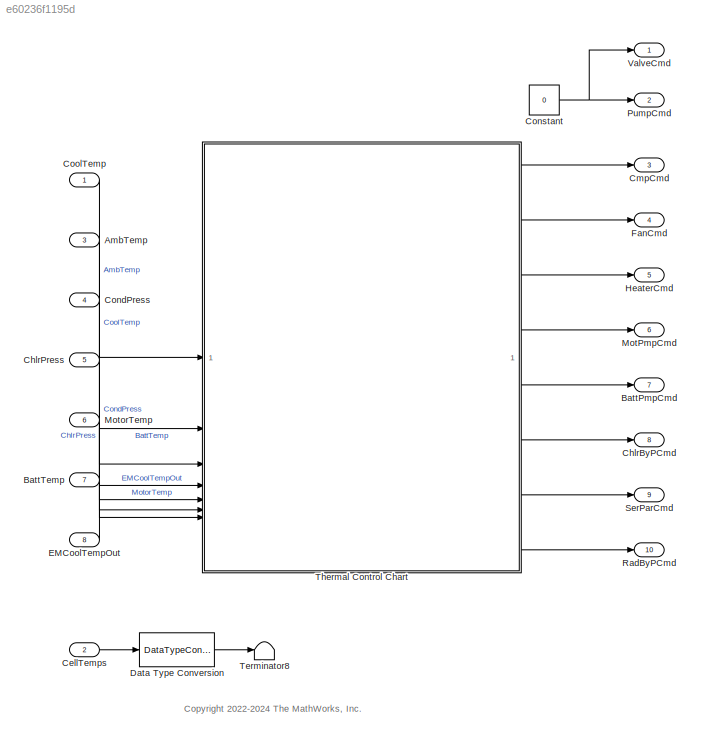
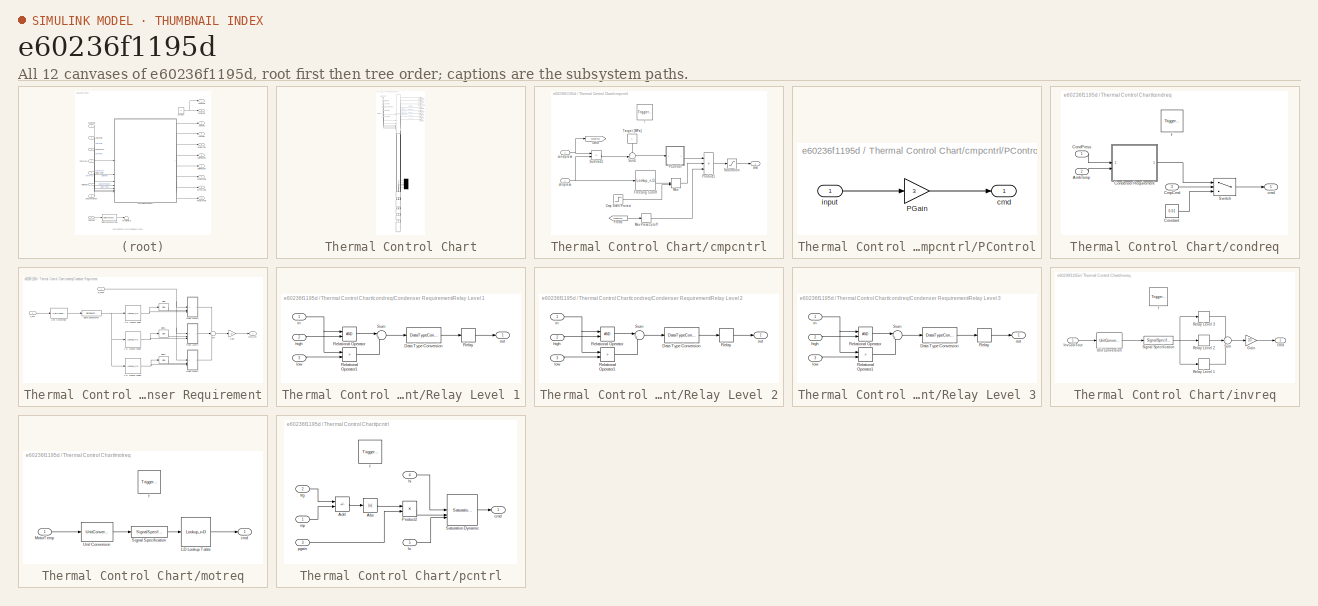
[diagram: thumbnail index - all 12 canvases of the model, root first then tree order]
MODEL slx_e60236f1195d
KIND model
CONFIG AbsTol = auto
CONFIG EnableMultiTasking = off
CONFIG FixedStep = 0.1
CONFIG MaxStep = auto
CONFIG MinStep = auto
CONFIG RelTol = 1e-3
CONFIG SampleTimeConstraint = Unconstrained
CONFIG SolverName = FixedStepDiscrete
CONFIG StartTime = 0.0
CONFIG StopTime = 10000
BLOCK [Inport] AmbTemp
  Port = 3
  Unit = K
BLOCK [Outport] BattPmpCmd
  Port = 7
BLOCK [Inport] BattTemp
  Port = 7
  Unit = K
BLOCK [Inport] CellTemps
  Port = 2
  PortDimensions = PlntBattNumCellSer
BLOCK [Outport] ChlrByPCmd
  Port = 8
BLOCK [Inport] ChlrPress
  Port = 5
  Unit = MPa
BLOCK [Outport] CmpCmd
  Port = 3
BLOCK [Inport] CondPress
  Port = 4
  Unit = MPa
BLOCK [Constant] Constant
  SampleTime = 0.1
  Value = 0
BLOCK [Inport] CoolTemp
  Unit = K
BLOCK [DataTypeConversion] Data Type Conversion
  OutDataTypeStr = single
  RndMeth = Floor
  SaturateOnIntegerOverflow = off
BLOCK [Inport] EMCoolTempOut
  Port = 8
  Unit = K
BLOCK [Outport] FanCmd
  Port = 4
BLOCK [Outport] HeaterCmd
  Port = 5
BLOCK [Outport] MotPmpCmd
  Port = 6
BLOCK [Inport] MotorTemp
  Port = 6
  Unit = K
BLOCK [Outport] PumpCmd
  Port = 2
BLOCK [Outport] RadByPCmd
  Port = 10
BLOCK [Outport] SerParCmd
  Port = 9
BLOCK [Terminator] Terminator8
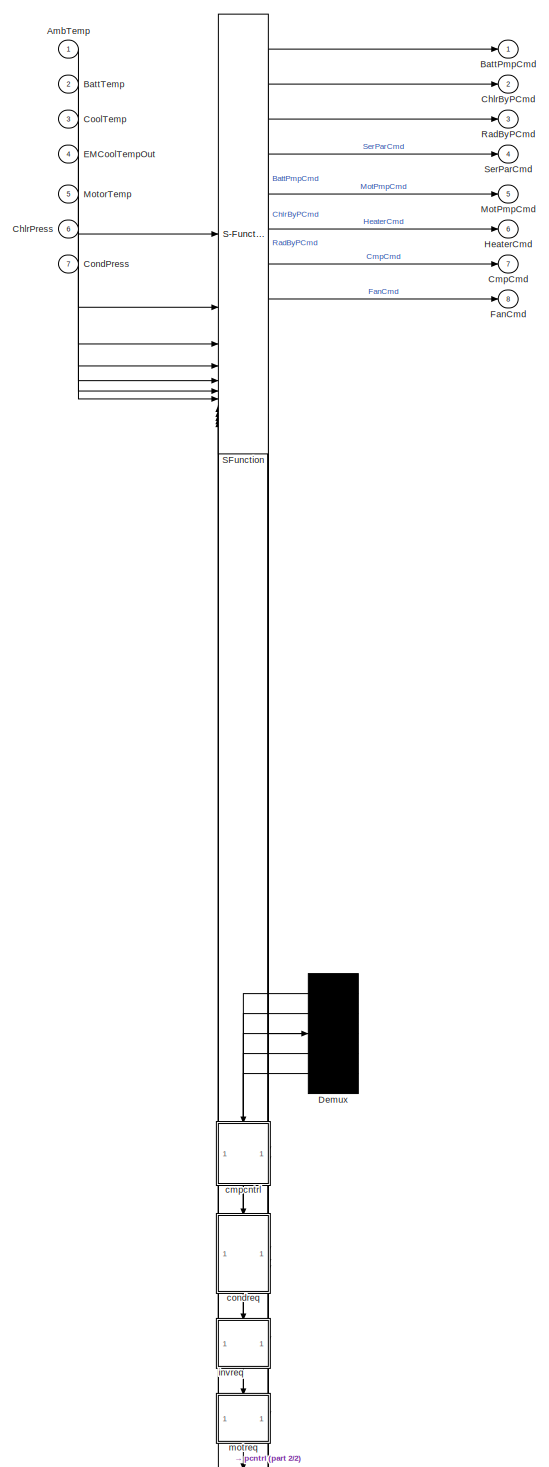
[diagram: Thermal Control Chart - part 1/2, most of the canvas]
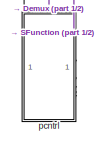
[diagram: Thermal Control Chart - part 2/2, bottom center region]
BLOCK [SubSystem] Thermal Control Chart
  ErrorFcn = Stateflow.Translate.translate
  PermitHierarchicalResolution = ExplicitOnly
  PortSchema = {"entries":[{"content":{"sides":[{"content":{"connectorIds":["In3","In1","In7","In6","In5","In2","In4"]},"type":"ConnectorPlacement.EquallySpacedRectSide","uuid":"4fe00f39-37c1-46c0-a616-5b099423e3d7"},{"content":{"connectorIds":["Out7","Out8","Out6","Out5","Out1","Out2","Out4","Out3"],"side":"RIGHT"},"type":"ConnectorPlacement.EquallySpacedRectSide","uuid":"6ae0ae8a-110b-42ac-9a90-d19ce2f3e627"},...<+307ch>
  SFBlockType = Chart
  TreatAsAtomicUnit = on
BLOCK [Demux] Thermal Control Chart/ Demux 
  Outputs = 5
BLOCK [S-Function] Thermal Control Chart/ SFunction 
  EnableBusSupport = off
  FunctionName = sf_sfun
  Parameters = CtrlThrBattTrgTemp,CtrlThrEMTrgTemp
  PortCounts = [12 21]
  SFcnIsStateOwnerBlock = off
  SFunctionDeploymentMode = off
  Tag = Stateflow S-Function 3
BLOCK [Inport] Thermal Control Chart/AmbTemp
BLOCK [Outport] Thermal Control Chart/BattPmpCmd
BLOCK [Inport] Thermal Control Chart/BattTemp
  Port = 2
BLOCK [Outport] Thermal Control Chart/ChlrByPCmd
  Port = 2
BLOCK [Inport] Thermal Control Chart/ChlrPress
  Port = 6
BLOCK [Outport] Thermal Control Chart/CmpCmd
  Port = 7
BLOCK [Inport] Thermal Control Chart/CondPress
  Port = 7
BLOCK [Inport] Thermal Control Chart/CoolTemp
  Port = 3
BLOCK [Inport] Thermal Control Chart/EMCoolTempOut
  Port = 4
BLOCK [Outport] Thermal Control Chart/FanCmd
  Port = 8
BLOCK [Outport] Thermal Control Chart/HeaterCmd
  Port = 6
BLOCK [Outport] Thermal Control Chart/MotPmpCmd
  Port = 5
BLOCK [Inport] Thermal Control Chart/MotorTemp
  Port = 5
BLOCK [Outport] Thermal Control Chart/RadByPCmd
  Port = 3
BLOCK [Outport] Thermal Control Chart/SerParCmd
  Port = 4
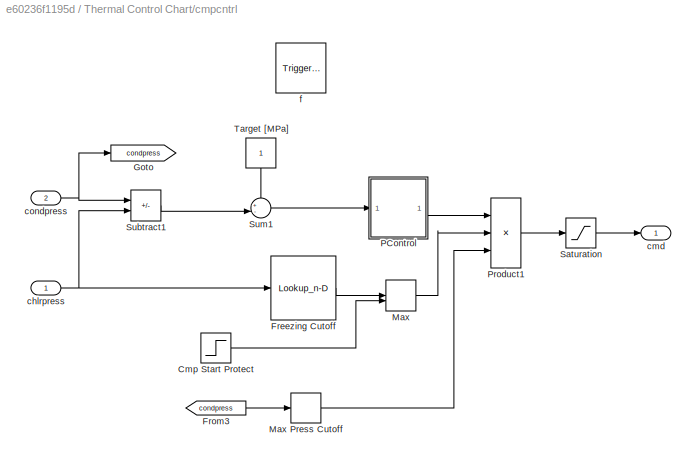
BLOCK [SubSystem] Thermal Control Chart/cmpcntrl
  PreDeleteFcn = Stateflow.SLINSF.SimulinkMan.removePreDeleteFcn
  UndoDeleteFcn = Stateflow.SLINSF.SimulinkMan.restorePreDeleteFcn
BLOCK [Step] Thermal Control Chart/cmpcntrl/Cmp Start Protect
  After = 0
  Before = 1
  Time = 15
BLOCK [Lookup_n-D] Thermal Control Chart/cmpcntrl/Freezing Cutoff
  BeginIndexSearchUsingPreviousIndexResult = on
  BreakpointsForDimension1 = [0.3 0.31]
  ExtrapMethod = Clip
  IndexSearchMethod = Linear search
  InputPortMap = u0
  InternalRulePriority = Speed
  NumberOfTableDimensions = 1
  RndMeth = Simplest
  Table = [0.1 1]
BLOCK [From] Thermal Control Chart/cmpcntrl/From3
  GotoTag = condpress
BLOCK [Goto] Thermal Control Chart/cmpcntrl/Goto
  GotoTag = condpress
BLOCK [MinMax] Thermal Control Chart/cmpcntrl/Max
  Function = max
  Inputs = 2
BLOCK [Relay] Thermal Control Chart/cmpcntrl/Max Press Cutoff
  OffOutputValue = 1
  OffSwitchValue = 2.9
  OnOutputValue = 0.1
  OnSwitchValue = 3
BLOCK [SubSystem] Thermal Control Chart/cmpcntrl/PControl
BLOCK [Gain] Thermal Control Chart/cmpcntrl/PControl/PGain
  Gain = 3
BLOCK [Outport] Thermal Control Chart/cmpcntrl/PControl/cmd
BLOCK [Inport] Thermal Control Chart/cmpcntrl/PControl/input
BLOCK [Product] Thermal Control Chart/cmpcntrl/Product1
  Inputs = 3
BLOCK [Saturate] Thermal Control Chart/cmpcntrl/Saturation
  LowerLimit = 0.1
  UpperLimit = 1
BLOCK [Sum] Thermal Control Chart/cmpcntrl/Subtract1
  IconShape = rectangular
  Inputs = +-
BLOCK [Sum] Thermal Control Chart/cmpcntrl/Sum1
  Inputs = +-|
BLOCK [Constant] Thermal Control Chart/cmpcntrl/Target [MPa]
  NameLocation = right
BLOCK [Inport] Thermal Control Chart/cmpcntrl/chlrpress
  OutDataTypeStr = double
  PortDimensions = 1
  SignalType = real
  VarSizeSig = No
BLOCK [Outport] Thermal Control Chart/cmpcntrl/cmd
BLOCK [Inport] Thermal Control Chart/cmpcntrl/condpress
  OutDataTypeStr = double
  Port = 2
  PortDimensions = 1
  SignalType = real
  VarSizeSig = No
BLOCK [TriggerPort] Thermal Control Chart/cmpcntrl/f
  CopyFcn = Stateflow.SLINSF.SimulinkMan.removeBlockPreDeleteFcn
  PreDeleteFcn = Stateflow.SLINSF.SimulinkMan.unsafePredeleteFcn
  SampleTime = -1
  StatesWhenEnabling = held
  TriggerType = function-call
  VariantControl = (inherit)
BLOCK [SubSystem] Thermal Control Chart/condreq
  PreDeleteFcn = Stateflow.SLINSF.SimulinkMan.removePreDeleteFcn
  UndoDeleteFcn = Stateflow.SLINSF.SimulinkMan.restorePreDeleteFcn
BLOCK [Inport] Thermal Control Chart/condreq/AmbTemp
  OutDataTypeStr = double
  Port = 2
  PortDimensions = 1
  SignalType = real
  VarSizeSig = No
BLOCK [Inport] Thermal Control Chart/condreq/CmpCmd
  OutDataTypeStr = double
  Port = 3
  PortDimensions = 1
  SignalType = real
  VarSizeSig = No
BLOCK [Inport] Thermal Control Chart/condreq/CondPress
  OutDataTypeStr = double
  PortDimensions = 1
  SignalType = real
  VarSizeSig = No
BLOCK [SubSystem] Thermal Control Chart/condreq/Condenser Requirement
BLOCK [Lookup_n-D] Thermal Control Chart/condreq/Condenser Requirement/1-D Lookup Table
  BeginIndexSearchUsingPreviousIndexResult = on
  BreakpointsForDimension1 = [0 20 30 40 50]
  IndexSearchMethod = Linear search
  InputPortMap = u0
  InternalRulePriority = Speed
  NumberOfTableDimensions = 1
  RndMeth = Simplest
  Table = [2.0 2.0 1.8 1.5 1.3]
BLOCK [Lookup_n-D] Thermal Control Chart/condreq/Condenser Requirement/1-D Lookup Table1
  BeginIndexSearchUsingPreviousIndexResult = on
  BreakpointsForDimension1 = [0 20 30 40 50]
  IndexSearchMethod = Linear search
  InputPortMap = u0
  InternalRulePriority = Speed
  NumberOfTableDimensions = 1
  RndMeth = Simplest
  Table = [1.4 1.4 1.3 1.2 1.1]
BLOCK [Lookup_n-D] Thermal Control Chart/condreq/Condenser Requirement/1-D Lookup Table2
  BeginIndexSearchUsingPreviousIndexResult = on
  BreakpointsForDimension1 = [0 20 30 40 50]
  IndexSearchMethod = Linear search
  InputPortMap = u0
  InternalRulePriority = Speed
  NumberOfTableDimensions = 1
  RndMeth = Simplest
  Table = [0.8 0.8 0.8 0.8 0.8]
BLOCK [Bias] Thermal Control Chart/condreq/Condenser Requirement/Bias
  Bias = 0.4
  SaturateOnIntegerOverflow = off
BLOCK [Bias] Thermal Control Chart/condreq/Condenser Requirement/Bias1
  Bias = 0.4
  SaturateOnIntegerOverflow = off
BLOCK [Bias] Thermal Control Chart/condreq/Condenser Requirement/Bias2
  Bias = 0.3
  SaturateOnIntegerOverflow = off
BLOCK [Gain] Thermal Control Chart/condreq/Condenser Requirement/Gain
  Gain = 1/3
BLOCK [SubSystem] Thermal Control Chart/condreq/Condenser Requirement/Relay Level 1
BLOCK [DataTypeConversion] Thermal Control Chart/condreq/Condenser Requirement/Relay Level 1/Data Type Conversion
  RndMeth = Floor
  SaturateOnIntegerOverflow = off
BLOCK [RelationalOperator] Thermal Control Chart/condreq/Condenser Requirement/Relay Level 1/Relational Operator
  InputSameDT = off
  OutDataTypeStr = boolean
  RndMeth = Simplest
BLOCK [RelationalOperator] Thermal Control Chart/condreq/Condenser Requirement/Relay Level 1/Relational Operator1
  InputSameDT = off
  Operator = >
  OutDataTypeStr = boolean
  RndMeth = Simplest
BLOCK [Relay] Thermal Control Chart/condreq/Condenser Requirement/Relay Level 1/Relay
  OffSwitchValue = 0.5
  OnSwitchValue = 1.5
BLOCK [Sum] Thermal Control Chart/condreq/Condenser Requirement/Relay Level 1/Sum
  Inputs = |++
BLOCK [Inport] Thermal Control Chart/condreq/Condenser Requirement/Relay Level 1/high
  Port = 2
BLOCK [Inport] Thermal Control Chart/condreq/Condenser Requirement/Relay Level 1/in
BLOCK [Inport] Thermal Control Chart/condreq/Condenser Requirement/Relay Level 1/low
  Port = 3
BLOCK [Outport] Thermal Control Chart/condreq/Condenser Requirement/Relay Level 1/out
BLOCK [SubSystem] Thermal Control Chart/condreq/Condenser Requirement/Relay Level 2
BLOCK [DataTypeConversion] Thermal Control Chart/condreq/Condenser Requirement/Relay Level 2/Data Type Conversion
  RndMeth = Floor
  SaturateOnIntegerOverflow = off
BLOCK [RelationalOperator] Thermal Control Chart/condreq/Condenser Requirement/Relay Level 2/Relational Operator
  InputSameDT = off
  OutDataTypeStr = boolean
  RndMeth = Simplest
BLOCK [RelationalOperator] Thermal Control Chart/condreq/Condenser Requirement/Relay Level 2/Relational Operator1
  InputSameDT = off
  Operator = >
  OutDataTypeStr = boolean
  RndMeth = Simplest
BLOCK [Relay] Thermal Control Chart/condreq/Condenser Requirement/Relay Level 2/Relay
  OffSwitchValue = 0.5
  OnSwitchValue = 1.5
BLOCK [Sum] Thermal Control Chart/condreq/Condenser Requirement/Relay Level 2/Sum
  Inputs = |++
BLOCK [Inport] Thermal Control Chart/condreq/Condenser Requirement/Relay Level 2/high
  Port = 2
BLOCK [Inport] Thermal Control Chart/condreq/Condenser Requirement/Relay Level 2/in
BLOCK [Inport] Thermal Control Chart/condreq/Condenser Requirement/Relay Level 2/low
  Port = 3
BLOCK [Outport] Thermal Control Chart/condreq/Condenser Requirement/Relay Level 2/out
BLOCK [SubSystem] Thermal Control Chart/condreq/Condenser Requirement/Relay Level 3
BLOCK [DataTypeConversion] Thermal Control Chart/condreq/Condenser Requirement/Relay Level 3/Data Type Conversion
  RndMeth = Floor
  SaturateOnIntegerOverflow = off
BLOCK [RelationalOperator] Thermal Control Chart/condreq/Condenser Requirement/Relay Level 3/Relational Operator
  InputSameDT = off
  OutDataTypeStr = boolean
  RndMeth = Simplest
BLOCK [RelationalOperator] Thermal Control Chart/condreq/Condenser Requirement/Relay Level 3/Relational Operator1
  InputSameDT = off
  Operator = >
  OutDataTypeStr = boolean
  RndMeth = Simplest
BLOCK [Relay] Thermal Control Chart/condreq/Condenser Requirement/Relay Level 3/Relay
  OffSwitchValue = 0.5
  OnSwitchValue = 1.5
BLOCK [Sum] Thermal Control Chart/condreq/Condenser Requirement/Relay Level 3/Sum
  Inputs = |++
BLOCK [Inport] Thermal Control Chart/condreq/Condenser Requirement/Relay Level 3/high
  Port = 2
BLOCK [Inport] Thermal Control Chart/condreq/Condenser Requirement/Relay Level 3/in
BLOCK [Inport] Thermal Control Chart/condreq/Condenser Requirement/Relay Level 3/low
  Port = 3
BLOCK [Outport] Thermal Control Chart/condreq/Condenser Requirement/Relay Level 3/out
BLOCK [SignalSpecification] Thermal Control Chart/condreq/Condenser Requirement/Signal Specification
  Unit = °C
BLOCK [Sum] Thermal Control Chart/condreq/Condenser Requirement/Sum
  Inputs = +++
BLOCK [Inport] Thermal Control Chart/condreq/Condenser Requirement/T_env
  Port = 2
  Unit = K
BLOCK [UnitConversion] Thermal Control Chart/condreq/Condenser Requirement/Unit Conversion
BLOCK [Outport] Thermal Control Chart/condreq/Condenser Requirement/cmd_fan
BLOCK [Inport] Thermal Control Chart/condreq/Condenser Requirement/p_cond
BLOCK [Constant] Thermal Control Chart/condreq/Constant
  SampleTime = -1
  Value = 0.01
BLOCK [Switch] Thermal Control Chart/condreq/Switch
  Criteria = u2 > Threshold
  InputSameDT = off
  SaturateOnIntegerOverflow = off
BLOCK [Outport] Thermal Control Chart/condreq/cmd
BLOCK [TriggerPort] Thermal Control Chart/condreq/f
  CopyFcn = Stateflow.SLINSF.SimulinkMan.removeBlockPreDeleteFcn
  PreDeleteFcn = Stateflow.SLINSF.SimulinkMan.unsafePredeleteFcn
  SampleTime = -1
  StatesWhenEnabling = held
  TriggerType = function-call
  VariantControl = (inherit)
BLOCK [SubSystem] Thermal Control Chart/invreq
  PreDeleteFcn = Stateflow.SLINSF.SimulinkMan.removePreDeleteFcn
  UndoDeleteFcn = Stateflow.SLINSF.SimulinkMan.restorePreDeleteFcn
BLOCK [Gain] Thermal Control Chart/invreq/Gain
  Gain = 1/3
BLOCK [Inport] Thermal Control Chart/invreq/InvCoolTout
  OutDataTypeStr = double
  PortDimensions = 1
  SignalType = real
  Unit = K
  VarSizeSig = No
BLOCK [Relay] Thermal Control Chart/invreq/Relay Level 1
  OffSwitchValue = 65
  OnSwitchValue = 75
BLOCK [Relay] Thermal Control Chart/invreq/Relay Level 2
  OffSwitchValue = 76
  OnSwitchValue = 85
BLOCK [Relay] Thermal Control Chart/invreq/Relay Level 3
  OffSwitchValue = 86
  OnSwitchValue = 95
BLOCK [SignalSpecification] Thermal Control Chart/invreq/Signal Specification
  Unit = °C
BLOCK [Sum] Thermal Control Chart/invreq/Sum
  Inputs = +++
BLOCK [UnitConversion] Thermal Control Chart/invreq/Unit Conversion
BLOCK [Outport] Thermal Control Chart/invreq/cmd
BLOCK [TriggerPort] Thermal Control Chart/invreq/f
  CopyFcn = Stateflow.SLINSF.SimulinkMan.removeBlockPreDeleteFcn
  PreDeleteFcn = Stateflow.SLINSF.SimulinkMan.unsafePredeleteFcn
  SampleTime = -1
  StatesWhenEnabling = held
  TriggerType = function-call
  VariantControl = (inherit)
BLOCK [SubSystem] Thermal Control Chart/motreq
  PreDeleteFcn = Stateflow.SLINSF.SimulinkMan.removePreDeleteFcn
  UndoDeleteFcn = Stateflow.SLINSF.SimulinkMan.restorePreDeleteFcn
BLOCK [Lookup_n-D] Thermal Control Chart/motreq/1-D Lookup Table
  BeginIndexSearchUsingPreviousIndexResult = on
  BreakpointsForDimension1 = [-50 45 48 52 58 60 75 130]
  IndexSearchMethod = Linear search
  InputPortMap = u0
  InternalRulePriority = Speed
  NumberOfTableDimensions = 1
  RndMeth = Simplest
  Table = [0 0 0.1 0.3 0.5 0.7 1 1]
BLOCK [Inport] Thermal Control Chart/motreq/MotorTemp
  OutDataTypeStr = double
  PortDimensions = 1
  SignalType = real
  Unit = K
  VarSizeSig = No
BLOCK [SignalSpecification] Thermal Control Chart/motreq/Signal Specification
  Unit = °C
BLOCK [UnitConversion] Thermal Control Chart/motreq/Unit Conversion
BLOCK [Outport] Thermal Control Chart/motreq/cmd
BLOCK [TriggerPort] Thermal Control Chart/motreq/f
  CopyFcn = Stateflow.SLINSF.SimulinkMan.removeBlockPreDeleteFcn
  PreDeleteFcn = Stateflow.SLINSF.SimulinkMan.unsafePredeleteFcn
  SampleTime = -1
  StatesWhenEnabling = held
  TriggerType = function-call
  VariantControl = (inherit)
BLOCK [SubSystem] Thermal Control Chart/pcntrl
  PreDeleteFcn = Stateflow.SLINSF.SimulinkMan.removePreDeleteFcn
  UndoDeleteFcn = Stateflow.SLINSF.SimulinkMan.restorePreDeleteFcn
BLOCK [Abs] Thermal Control Chart/pcntrl/Abs
  SaturateOnIntegerOverflow = off
BLOCK [Sum] Thermal Control Chart/pcntrl/Add
  IconShape = rectangular
  Inputs = +-
BLOCK [Product] Thermal Control Chart/pcntrl/Product2
BLOCK [Reference] Thermal Control Chart/pcntrl/Saturation Dynamic  REF=simulink/Discontinuities/Saturation
Dynamic
  SourceBlock = simulink/Discontinuities/Saturation\nDynamic
  SourceType = Saturation Dynamic
BLOCK [Outport] Thermal Control Chart/pcntrl/cmd
BLOCK [TriggerPort] Thermal Control Chart/pcntrl/f
  CopyFcn = Stateflow.SLINSF.SimulinkMan.removeBlockPreDeleteFcn
  PreDeleteFcn = Stateflow.SLINSF.SimulinkMan.unsafePredeleteFcn
  SampleTime = -1
  StatesWhenEnabling = held
  TriggerType = function-call
  VariantControl = (inherit)
BLOCK [Inport] Thermal Control Chart/pcntrl/hi
  OutDataTypeStr = double
  Port = 4
  PortDimensions = 1
  SignalType = real
  VarSizeSig = No
BLOCK [Inport] Thermal Control Chart/pcntrl/inp
  OutDataTypeStr = double
  PortDimensions = 1
  SignalType = real
  VarSizeSig = No
BLOCK [Inport] Thermal Control Chart/pcntrl/lo
  OutDataTypeStr = double
  Port = 5
  PortDimensions = 1
  SignalType = real
  VarSizeSig = No
BLOCK [Inport] Thermal Control Chart/pcntrl/pgain
  OutDataTypeStr = double
  Port = 3
  PortDimensions = 1
  SignalType = real
  VarSizeSig = No
BLOCK [Inport] Thermal Control Chart/pcntrl/trg
  OutDataTypeStr = double
  Port = 2
  PortDimensions = 1
  SignalType = real
  VarSizeSig = No
BLOCK [Outport] ValveCmd
ANNOTATION (root): <copyright redacted>
LINE AmbTemp:1 -> Thermal Control Chart:1
LINE BattTemp:1 -> Thermal Control Chart:2
LINE CellTemps:1 -> Data Type Conversion:1
LINE ChlrPress:1 -> Thermal Control Chart:6
LINE CondPress:1 -> Thermal Control Chart:7
NET Constant:1 -> PumpCmd:1, ValveCmd:1
LINE CoolTemp:1 -> Thermal Control Chart:3
LINE Data Type Conversion:1 -> Terminator8:1
LINE EMCoolTempOut:1 -> Thermal Control Chart:4
LINE MotorTemp:1 -> Thermal Control Chart:5
LINE Thermal Control Chart:1 -> BattPmpCmd:1
LINE Thermal Control Chart:2 -> ChlrByPCmd:1
LINE Thermal Control Chart:3 -> RadByPCmd:1
LINE Thermal Control Chart:4 -> SerParCmd:1
LINE Thermal Control Chart:5 -> MotPmpCmd:1
LINE Thermal Control Chart:6 -> HeaterCmd:1
LINE Thermal Control Chart:7 -> CmpCmd:1
LINE Thermal Control Chart:8 -> FanCmd:1
note: NET lines group one-source signal fan-out (src -> all destinations, sorted); 1:1 wires keep LINE
CHART Thermal Control Chart states=20 transitions=15
  STATE_LABEL 'Pumps'
  STATE_LABEL 'PumpsON\nduring:\nBattPmpCmd = ...\n    pcntrl(BattTemp,CtrlThrBattTrgTemp,1,1,0.1);\n'
  STATE_LABEL 'PumpsOFF\nentry:\nBattPmpCmd = 0.01;\n'
  STATE_LABEL '[BattTemp - CtrlThrBattTrgTemp > 0 || MotorTemp - CtrlThrEMTrgTemp > 3 || ...\n CtrlThrBattTrgTemp - AmbTemp > 20]'
  STATE_LABEL '[CtrlThrBattTrgTemp - BattTemp > 5 && CtrlThrEMTrgTemp - MotorTemp > 5]'
  STATE_LABEL 'PumpsON\nduring:\nBattPmpCmd = ...\n    pcntrl(BattTemp,CtrlThrBattTrgTemp,1,1,0.1);\n'
  STATE_LABEL 'PumpsOFF\nentry:\nBattPmpCmd = 0.01;\n'
  STATE_LABEL 'Heater'
  STATE_LABEL 'HeatON\nentry:\nHeaterCmd = 1;'
  STATE_LABEL 'HeatOFF\nentry:\nHeaterCmd = 0;'
  STATE_LABEL '[BattPmpCmd > 0 && CtrlThrBattTrgTemp - CoolTemp > 20 && ...\nCtrlThrBattTrgTemp - AmbTemp > 20 ]'
  STATE_LABEL '[CtrlThrBattTrgTemp - CoolTemp < 10]'
  STATE_LABEL 'HeatON\nentry:\nHeaterCmd = 1;'
  STATE_LABEL 'HeatOFF\nentry:\nHeaterCmd = 0;'
  STATE_LABEL 'cmd = pcntrl(inp,trg,pgain,hi,lo)'
  STATE_LABEL 'cmd = cmpcntrl(chlrpress, ...\ncondpress)'
  STATE_LABEL 'ChillerBypass'
  STATE_LABEL 'ChillerON\nentry:\nChlrByPCmd = 0;\nduring:\nCmpCmd = ...\n    cmpcntrl(ChlrPress,CondPress);'
  STATE_LABEL 'ChillerOFF\nentry:\nChlrByPCmd = 1;\nCmpCmd = 0;'
  STATE_LABEL '[HeaterCmd == 0 && BattPmpCmd > 0.01 && ...\n BattTemp - CtrlThrBattTrgTemp > 0 && ...\nBattTemp - CoolTemp < 5]'
  STATE_LABEL '[CtrlThrBattTrgTemp - BattTemp > 5 ]'
  STATE_LABEL 'ChillerON\nentry:\nChlrByPCmd = 0;\nduring:\nCmpCmd = ...\n    cmpcntrl(ChlrPress,CondPress);'
  STATE_LABEL 'ChillerOFF\nentry:\nChlrByPCmd = 1;\nCmpCmd = 0;'
  STATE_LABEL 'cmd = condreq(CondPress, ...\nAmbTemp,CmpCmd)'
  STATE_LABEL 'cmd = invreq(InvCoolTout)'
  STATE_LABEL 'RadiatorBypass'
  STATE_LABEL 'RadiatorON\nentry:\nRadByPCmd = 0;\nduring:\nfcmd1 = condreq(CondPress,AmbTemp,CmpCmd);\nfcmd2 = invreq(EMCoolTempOut);\nfcmd3 = motreq(MotorTemp);\nFanCmd = max([fcmd1,fcmd2,fcmd3]);'
  STATE_LABEL 'RadiatorOFF\nentry:\nRadByPCmd = 1;\nduring:\nFanCmd = condreq(CondPress,AmbTemp,CmpCmd);'
  STATE_LABEL '[HeaterCmd == 0 && BattPmpCmd > 0 && ...\nEMCoolTempOut - CtrlThrEMTrgTemp > 0 && ...\nEMCoolTempOut - AmbTemp > 0]'
  STATE_LABEL '[AmbTemp - EMCoolTempOut > 0]'
  STATE_LABEL 'RadiatorON\nentry:\nRadByPCmd = 0;\nduring:\nfcmd1 = condreq(CondPress,AmbTemp,CmpCmd);\nfcmd2 = invreq(EMCoolTempOut);\nfcmd3 = motreq(MotorTemp);\nFanCmd = max([fcmd1,fcmd2,fcmd3]);'
  STATE_LABEL 'RadiatorOFF\nentry:\nRadByPCmd = 1;\nduring:\nFanCmd = condreq(CondPress,AmbTemp,CmpCmd);'
  STATE_LABEL 'cmd = motreq(MotorTemp)'
  STATE_LABEL 'SeriesParallel'
  STATE_LABEL 'Parallel\nentry:\nSerParCmd = 0;\nduring:\nMotPmpCmd = ...\n    pcntrl(MotorTemp,CtrlThrEMTrgTemp,1,1,0.1);'
  STATE_LABEL 'Series\nentry:\nSerParCmd = 1;\nduring:\nMotPmpCmd = BattPmpCmd;'
  STATE_LABEL '[BattPmpCmd > 0.01 && (ChlrByPCmd < 0.5 || ...\nmax(AmbTemp,EMCoolTempOut) - CtrlThrBattTrgTemp > 10 ...\n|| MotorTemp - BattTemp > 50)]'
  STATE_LABEL '[max(AmbTemp,EMCoolTempOut) - CtrlThrBattTrgTemp < 5]'
  STATE_LABEL 'Parallel\nentry:\nSerParCmd = 0;\nduring:\nMotPmpCmd = ...\n    pcntrl(MotorTemp,CtrlThrEMTrgTemp,1,1,0.1);'
  STATE_LABEL 'Series\nentry:\nSerParCmd = 1;\nduring:\nMotPmpCmd = BattPmpCmd;'
CHART  states=0 transitions=0
